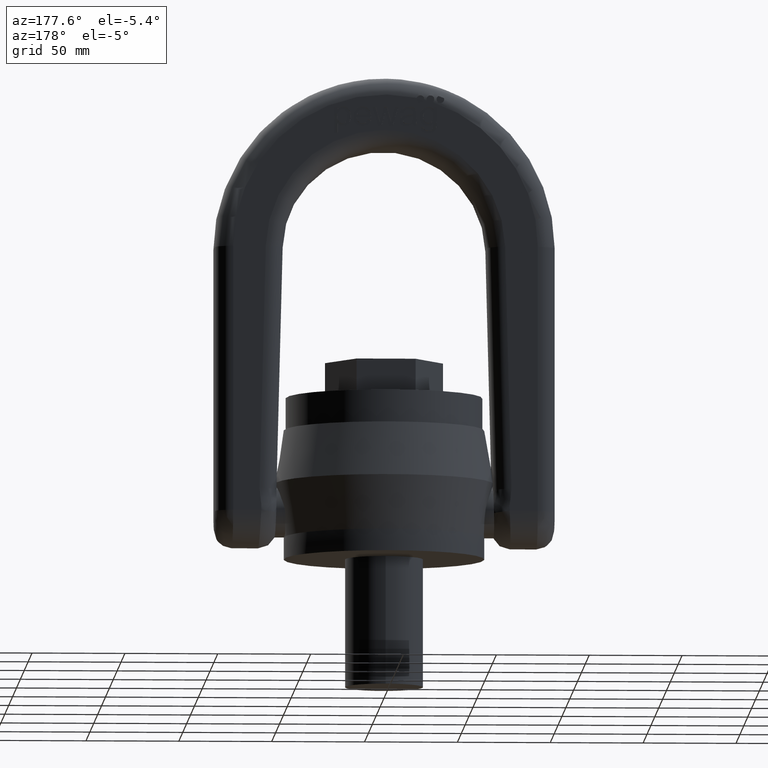
[diagram: clean part render]
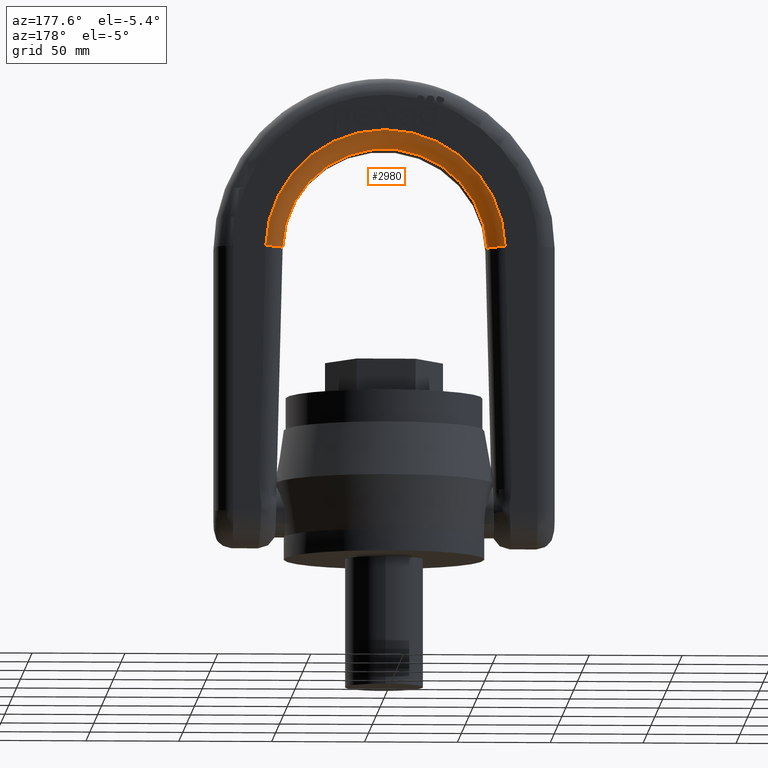
[diagram: same view with one face highlighted and labeled with its STEP entity id]
A machine part, auxiliary view. The second image highlights one B-rep face of the part: STEP entity #2980.
In plain terms, the highlighted toroidal blend (fillet) surface has major radius 64.5 mm and minor (blend) radius 9.5 mm.
Its self-contained STEP definition (entity closure, byte-faithful):
#212=TOROIDAL_SURFACE('',#5811,64.5,9.5);
#2626=FACE_OUTER_BOUND('',#3336,.T.);
#2980=ADVANCED_FACE('',(#2626),#212,.T.);
#3336=EDGE_LOOP('',(#4541,#4542,#4543,#4544));
#4541=ORIENTED_EDGE('',*,*,#5547,.T.);
#4542=ORIENTED_EDGE('',*,*,#5083,.F.);
#4543=ORIENTED_EDGE('',*,*,#5548,.T.);
#4544=ORIENTED_EDGE('',*,*,#5299,.F.);
#4667=VERTEX_POINT('',#7070);
#4669=VERTEX_POINT('',#7076);
#4799=VERTEX_POINT('',#8307);
#4800=VERTEX_POINT('',#8309);
#5083=EDGE_CURVE('',#4667,#4669,#5566,.T.);
#5299=EDGE_CURVE('',#4799,#4800,#5575,.T.);
#5547=EDGE_CURVE('',#4799,#4669,#5603,.T.);
#5548=EDGE_CURVE('',#4667,#4800,#5604,.T.);
#5566=CIRCLE('',#5652,55.);
#5575=CIRCLE('',#5714,64.5);
#5603=CIRCLE('',#5807,9.5);
#5604=CIRCLE('',#5809,9.5);
#5652=AXIS2_PLACEMENT_3D('',#7075,#5988,#5989);
#5714=AXIS2_PLACEMENT_3D('',#8308,#6253,#6254);
#5807=AXIS2_PLACEMENT_3D('',#9878,#6588,#6589);
#5809=AXIS2_PLACEMENT_3D('',#9880,#6592,#6593);
#5811=AXIS2_PLACEMENT_3D('',#9882,#6596,#6597);
#5988=DIRECTION('',(2.34291072916505E-15,1.,0.));
#5989=DIRECTION('',(1.,-2.33399158585971E-15,0.));
#6253=DIRECTION('',(-2.34291072916505E-15,-1.,0.));
#6254=DIRECTION('',(1.,-2.36675450985983E-15,0.));
#6588=DIRECTION('',(-0.0255100308212788,7.45311146754767E-17,0.999674566210173));
#6589=DIRECTION('',(0.999674566210172,0.,0.0255100308212788));
#6592=DIRECTION('',(0.0255100308212759,-1.49062229350936E-16,0.999674566210173));
#6593=DIRECTION('',(0.999674566210173,0.,-0.0255100308212759));
#6596=DIRECTION('',(-2.34291072916505E-15,-1.,0.));
#6597=DIRECTION('',(1.,-2.34422091348217E-15,0.));
#7070=CARTESIAN_POINT('',(-54.9821011415595,9.50000000000015,167.40305169517));
#7075=CARTESIAN_POINT('',(0.,9.49999999999997,166.));
#7076=CARTESIAN_POINT('',(54.9821011415595,9.49999999999985,167.40305169517));
#8307=CARTESIAN_POINT('',(64.4790095205561,18.9999999999998,167.645396987972));
#8308=CARTESIAN_POINT('',(2.2257651927068E-14,19.,166.));
#8309=CARTESIAN_POINT('',(-64.4790095205561,19.0000000000002,167.645396987972));
#9878=CARTESIAN_POINT('',(64.4790095205561,9.49999999999985,167.645396987972));
#9880=CARTESIAN_POINT('',(-64.4790095205561,9.50000000000015,167.645396987972));
#9882=CARTESIAN_POINT('',(0.,9.5,166.));